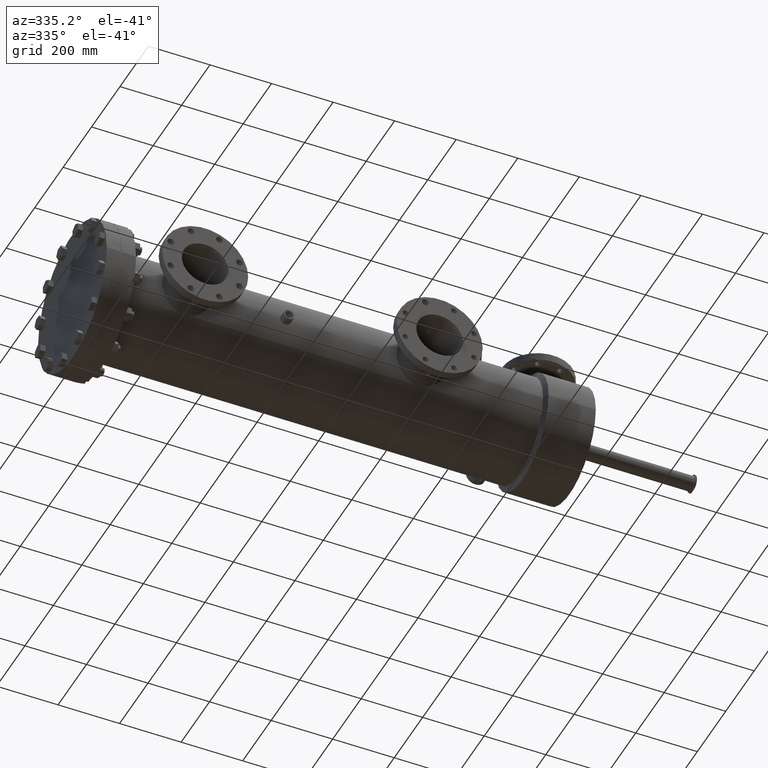
[diagram: clean part render]
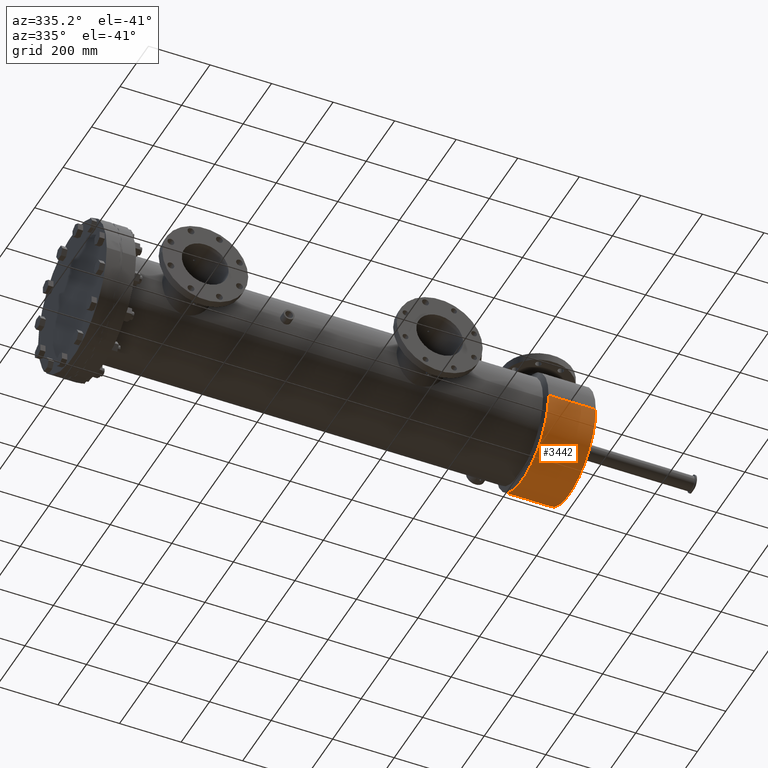
[diagram: same view with one face highlighted and labeled with its STEP entity id]
A machine part, auxiliary view. The second image highlights one B-rep face of the part: STEP entity #3442.
In plain terms, the highlighted cylindrical surface (partial cylindrical patch) has radius 185.104 mm, axis along (-1, 0, -0).
Its self-contained STEP definition (entity closure, byte-faithful):
#364 = CARTESIAN_POINT ( 'NONE',  ( -3.560000048720177279, 0.002932151969987652727, 0.0000000000000000000 ) ) ;
#578 = EDGE_CURVE ( 'NONE', #9514, #15393, #18657, .T. ) ;
#882 = DIRECTION ( 'NONE',  ( -1.000000000000000000, 6.844189882992511126E-19, -0.0000000000000000000 ) ) ;
#1493 = VECTOR ( 'NONE', #18694, 39.37007874015748143 ) ;
#1635 = ORIENTED_EDGE ( 'NONE', *, *, #578, .F. ) ;
#1921 = ORIENTED_EDGE ( 'NONE', *, *, #15605, .F. ) ;
#1964 = CARTESIAN_POINT ( 'NONE',  ( 57.54402133759244009, 7.290496113956240087, 8.924691879628067792E-16 ) ) ;
#2585 = AXIS2_PLACEMENT_3D ( 'NONE', #14470, #14231, #3559 ) ;
#2605 = CARTESIAN_POINT ( 'NONE',  ( 57.54402133759244009, -7.284631810016264808, 0.0000000000000000000 ) ) ;
#3442 = ADVANCED_FACE ( 'NONE', ( #9805 ), #22108, .T. ) ;
#3559 = DIRECTION ( 'NONE',  ( 0.0000000000000000000, -1.000000000000000000, 0.0000000000000000000 ) ) ;
#3752 = LINE ( 'NONE', #23007, #12670 ) ;
#3807 = DIRECTION ( 'NONE',  ( -1.000000000000000000, 6.844189882992511126E-19, -0.0000000000000000000 ) ) ;
#4242 = AXIS2_PLACEMENT_3D ( 'NONE', #11340, #882, #4317 ) ;
#4317 = DIRECTION ( 'NONE',  ( 0.0000000000000000000, -1.000000000000000000, 0.0000000000000000000 ) ) ;
#5028 = EDGE_LOOP ( 'NONE', ( #1921, #17751, #11237, #1635 ) ) ;
#7232 = VERTEX_POINT ( 'NONE', #18681 ) ;
#8107 = EDGE_CURVE ( 'NONE', #21646, #7232, #9117, .T. ) ;
#9117 = CIRCLE ( 'NONE', #2585, 7.287563961986252004 ) ;
#9514 = VERTEX_POINT ( 'NONE', #1964 ) ;
#9805 = FACE_OUTER_BOUND ( 'NONE', #5028, .T. ) ;
#10404 = LINE ( 'NONE', #20322, #1493 ) ;
#11237 = ORIENTED_EDGE ( 'NONE', *, *, #20263, .T. ) ;
#11340 = CARTESIAN_POINT ( 'NONE',  ( 57.54402133759244009, 0.002932151969987611094, 0.0000000000000000000 ) ) ;
#12299 = DIRECTION ( 'NONE',  ( -1.000000000000000000, 6.844189882992511126E-19, -0.0000000000000000000 ) ) ;
#12670 = VECTOR ( 'NONE', #12299, 39.37007874015748143 ) ;
#14231 = DIRECTION ( 'NONE',  ( -1.000000000000000000, 6.844189882992511126E-19, -0.0000000000000000000 ) ) ;
#14470 = CARTESIAN_POINT ( 'NONE',  ( 63.58151093272997656, 0.002932151969987607191, 0.0000000000000000000 ) ) ;
#15393 = VERTEX_POINT ( 'NONE', #2605 ) ;
#15605 = EDGE_CURVE ( 'NONE', #21646, #9514, #3752, .T. ) ;
#17456 = AXIS2_PLACEMENT_3D ( 'NONE', #364, #3807, #18111 ) ;
#17751 = ORIENTED_EDGE ( 'NONE', *, *, #8107, .T. ) ;
#18111 = DIRECTION ( 'NONE',  ( 0.0000000000000000000, -1.000000000000000000, 0.0000000000000000000 ) ) ;
#18657 = CIRCLE ( 'NONE', #4242, 7.287563961986252004 ) ;
#18681 = CARTESIAN_POINT ( 'NONE',  ( 63.58151093272997656, -7.284631810016264808, 0.0000000000000000000 ) ) ;
#18694 = DIRECTION ( 'NONE',  ( -1.000000000000000000, 6.844189882992511126E-19, -0.0000000000000000000 ) ) ;
#20263 = EDGE_CURVE ( 'NONE', #7232, #15393, #10404, .T. ) ;
#20322 = CARTESIAN_POINT ( 'NONE',  ( -3.560000048720177279, -7.284631810016264808, 0.0000000000000000000 ) ) ;
#21646 = VERTEX_POINT ( 'NONE', #23170 ) ;
#22108 = CYLINDRICAL_SURFACE ( 'NONE', #17456, 7.287563961986252004 ) ;
#23007 = CARTESIAN_POINT ( 'NONE',  ( -3.560000048720177279, 7.290496113956240087, 8.924691879628067792E-16 ) ) ;
#23170 = CARTESIAN_POINT ( 'NONE',  ( 63.58151093272997656, 7.290496113956240087, 8.924691879628067792E-16 ) ) ;